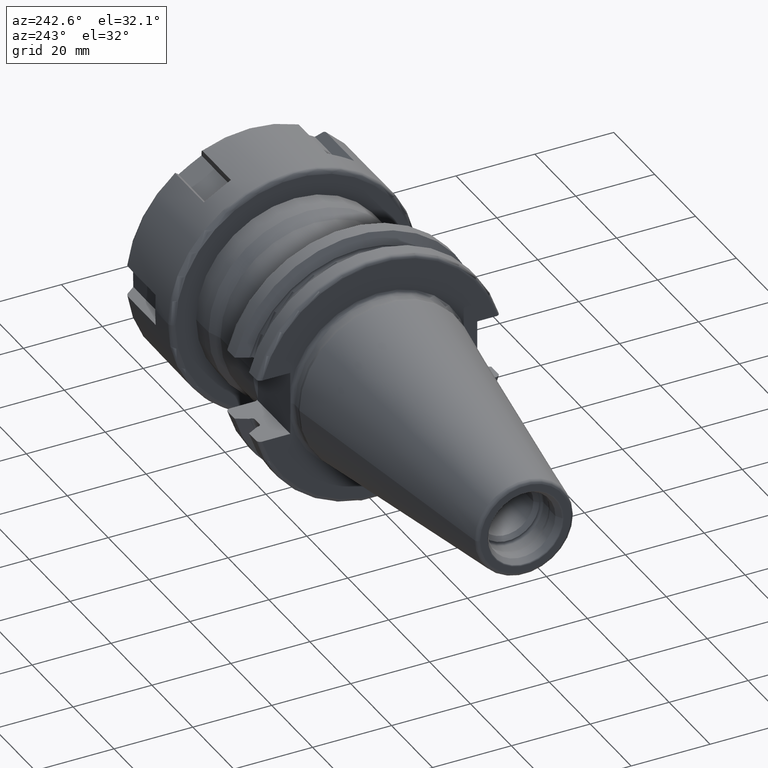
[diagram: clean part render]
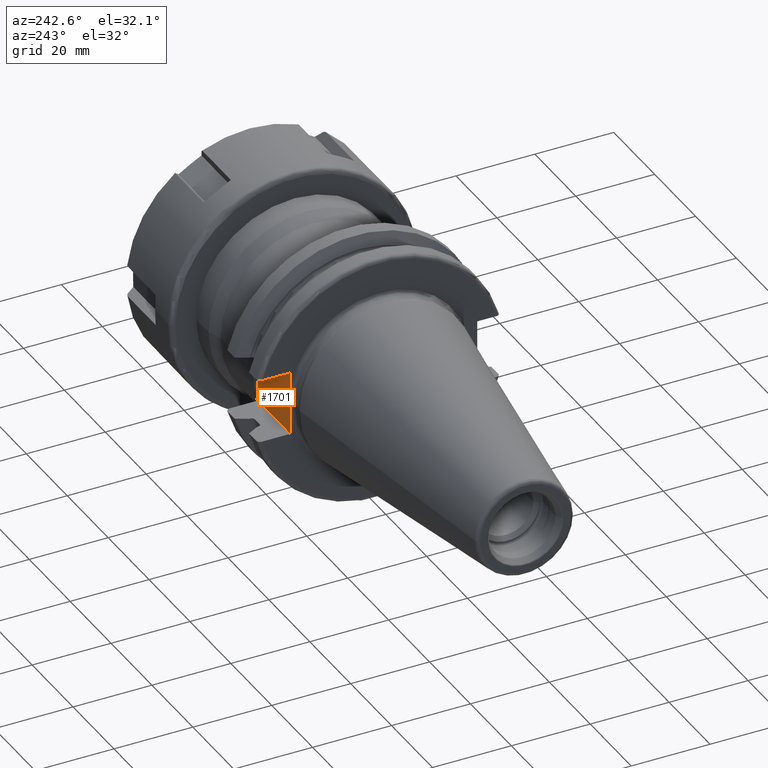
[diagram: same view with one face highlighted and labeled with its STEP entity id]
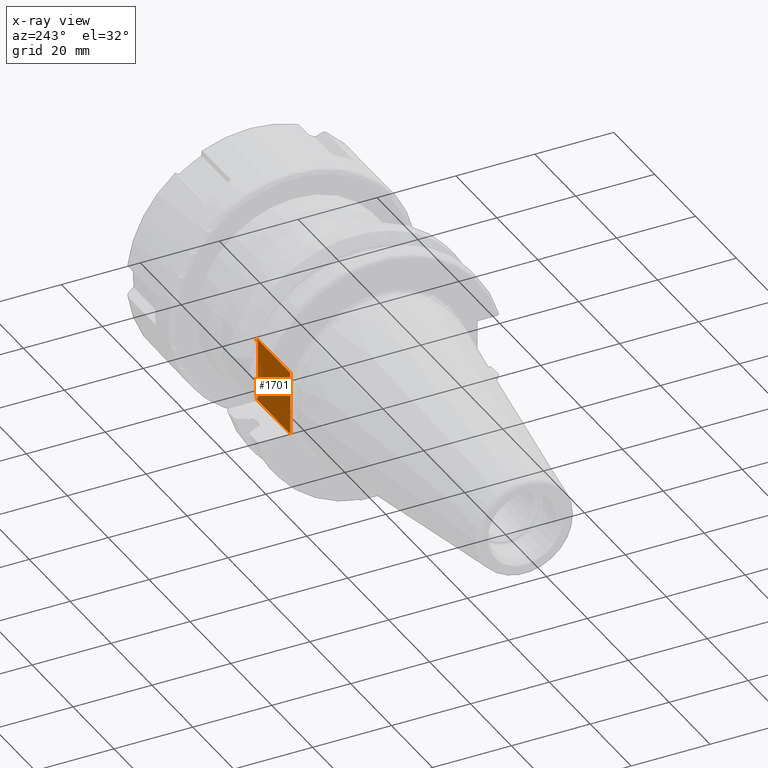
[diagram: x-ray of the same camera — body ghosted, the highlighted face saturated]
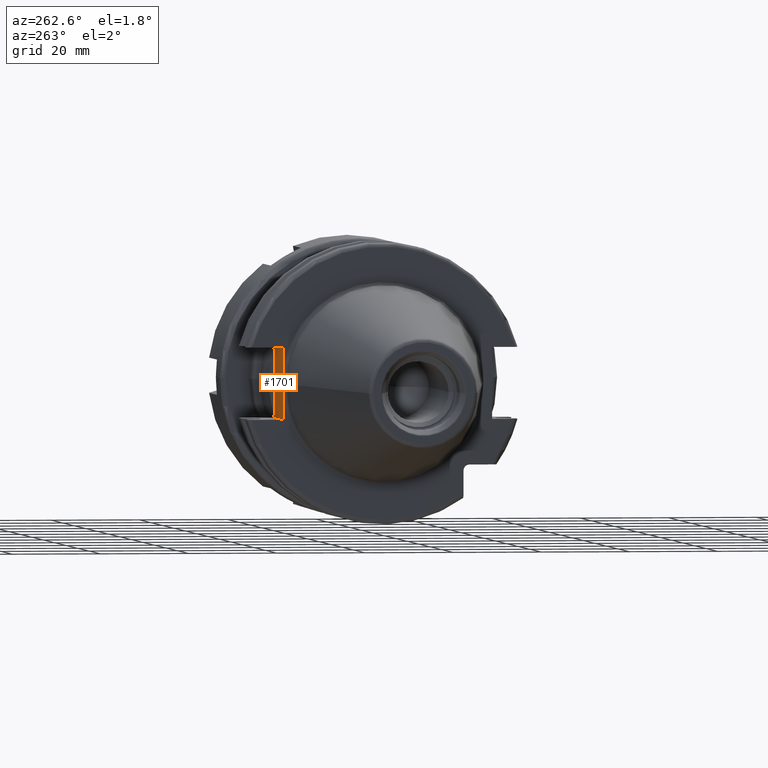
[diagram: same view with one face highlighted and labeled with its STEP entity id]
A machine part, auxiliary view. The second image highlights one B-rep face of the part: STEP entity #1701.
The next image is the same camera in x-ray: the body ghosted, the highlighted face saturated — about 4% of this face is hidden behind the body in this view.
A second angle (auxiliary view) of the same face is appended — the face is thin or edge-on in the first view.
In plain terms, the highlighted planar face has unit normal (0, -1, 0).
Its self-contained STEP definition (entity closure, byte-faithful):
#96=CARTESIAN_POINT('',(3.145714015969E0,2.255E1,0.E0));
#97=CARTESIAN_POINT('',(3.145714015969E0,2.255E1,-1.830251188857E-1));
#98=CARTESIAN_POINT('',(3.147263299438E0,2.255E1,-5.490774984715E-1));
#99=CARTESIAN_POINT('',(3.153915624300E0,2.255E1,-1.098219783342E0));
#100=CARTESIAN_POINT('',(3.163955531798E0,2.255E1,-1.647254187265E0));
#101=CARTESIAN_POINT('',(3.175890292850E0,2.255E1,-2.196155647006E0));
#102=CARTESIAN_POINT('',(3.187756155044E0,2.255E1,-2.744876756971E0));
#103=CARTESIAN_POINT('',(3.197183898560E0,2.255E1,-3.293518646440E0));
#104=CARTESIAN_POINT('',(3.2E0,2.255E1,-3.659354563864E0));
#105=CARTESIAN_POINT('',(3.2E0,2.255E1,-3.842281223440E0));
#122=DIRECTION('',(1.E0,0.E0,0.E0));
#123=VECTOR('',#122,1.623606320069E1);
#124=CARTESIAN_POINT('',(3.2E0,2.255E1,-8.1E0));
#125=LINE('',#124,#123);
#126=DIRECTION('',(0.E0,0.E0,-1.E0));
#127=VECTOR('',#126,1.490771612287E1);
#128=CARTESIAN_POINT('',(1.905E1,2.255E1,7.453858061434E0));
#129=LINE('',#128,#127);
#130=DIRECTION('',(-1.E0,0.E0,0.E0));
#131=VECTOR('',#130,1.623606320069E1);
#132=CARTESIAN_POINT('',(1.943606320069E1,2.255E1,8.1E0));
#133=LINE('',#132,#131);
#162=CARTESIAN_POINT('',(2.005E1,2.255E1,-7.453858061434E0));
#163=CARTESIAN_POINT('',(2.000936511799E1,2.255E1,-7.453858061434E0));
#164=CARTESIAN_POINT('',(1.992976315127E1,2.255E1,-7.469482832895E0));
#165=CARTESIAN_POINT('',(1.981396814209E1,2.255E1,-7.536286965290E0));
#166=CARTESIAN_POINT('',(1.970586770404E1,2.255E1,-7.639899395684E0));
#167=CARTESIAN_POINT('',(1.960833536573E1,2.255E1,-7.769522543170E0));
#168=CARTESIAN_POINT('',(1.951881462525E1,2.255E1,-7.921432053320E0));
#169=CARTESIAN_POINT('',(1.946301376301E1,2.255E1,-8.037994171646E0));
#170=CARTESIAN_POINT('',(1.943606320069E1,2.255E1,-8.1E0));
#193=CARTESIAN_POINT('',(1.943606320069E1,2.255E1,8.1E0));
#194=CARTESIAN_POINT('',(1.946305840827E1,2.255E1,8.037891455177E0));
#195=CARTESIAN_POINT('',(1.951892142596E1,2.255E1,7.921049304153E0));
#196=CARTESIAN_POINT('',(1.961060547916E1,2.255E1,7.765906197033E0));
#197=CARTESIAN_POINT('',(1.970740339789E1,2.255E1,7.638648713066E0));
#198=CARTESIAN_POINT('',(1.981036082603E1,2.255E1,7.539458555982E0));
#199=CARTESIAN_POINT('',(1.992628917834E1,2.255E1,7.470583481219E0));
#200=CARTESIAN_POINT('',(2.000780017492E1,2.255E1,7.453858061434E0));
#201=CARTESIAN_POINT('',(2.005E1,2.255E1,7.453858061434E0));
#208=DIRECTION('',(-1.E0,0.E0,-1.421085471520E-14));
#209=VECTOR('',#208,1.E0);
#210=CARTESIAN_POINT('',(2.005E1,2.255E1,7.453858061434E0));
#211=LINE('',#210,#209);
#245=DIRECTION('',(-1.E0,0.E0,0.E0));
#246=VECTOR('',#245,1.E0);
#247=CARTESIAN_POINT('',(2.005E1,2.255E1,-7.453858061434E0));
#248=LINE('',#247,#246);
#615=DIRECTION('',(0.E0,0.E0,-1.E0));
#616=VECTOR('',#615,4.257718776560E0);
#617=CARTESIAN_POINT('',(3.2E0,2.255E1,-3.842281223440E0));
#618=LINE('',#617,#616);
#619=DIRECTION('',(0.E0,0.E0,-1.E0));
#620=VECTOR('',#619,4.257718776560E0);
#621=CARTESIAN_POINT('',(3.2E0,2.255E1,8.1E0));
#622=LINE('',#621,#620);
#1041=CARTESIAN_POINT('',(3.2E0,2.255E1,3.842281223440E0));
#1042=CARTESIAN_POINT('',(3.2E0,2.255E1,3.659346360345E0));
#1043=CARTESIAN_POINT('',(3.197183660273E0,2.255E1,3.293495674472E0));
#1044=CARTESIAN_POINT('',(3.187755287998E0,2.255E1,2.744832710969E0));
#1045=CARTESIAN_POINT('',(3.175889115457E0,2.255E1,2.196103113875E0));
#1046=CARTESIAN_POINT('',(3.163954665645E0,2.255E1,1.647211248391E0));
#1047=CARTESIAN_POINT('',(3.153915287595E0,2.255E1,1.098195325368E0));
#1048=CARTESIAN_POINT('',(3.147263292433E0,2.255E1,5.490722257557E-1));
#1049=CARTESIAN_POINT('',(3.145714015969E0,2.255E1,1.830242653455E-1));
#1050=CARTESIAN_POINT('',(3.145714015969E0,2.255E1,0.E0));
#1418=CARTESIAN_POINT('',(3.2E0,2.255E1,8.1E0));
#1420=VERTEX_POINT('',#1418);
#1421=CARTESIAN_POINT('',(3.2E0,2.255E1,3.842281223440E0));
#1422=VERTEX_POINT('',#1421);
#1423=CARTESIAN_POINT('',(3.2E0,2.255E1,-3.842281223440E0));
#1424=CARTESIAN_POINT('',(3.2E0,2.255E1,-8.1E0));
#1425=VERTEX_POINT('',#1423);
#1426=VERTEX_POINT('',#1424);
#1445=VERTEX_POINT('',#1050);
#1487=CARTESIAN_POINT('',(2.005E1,2.255E1,-7.453858061434E0));
#1489=VERTEX_POINT('',#1487);
#1490=CARTESIAN_POINT('',(2.005E1,2.255E1,7.453858061434E0));
#1491=VERTEX_POINT('',#1490);
#1501=CARTESIAN_POINT('',(1.905E1,2.255E1,7.453858061434E0));
#1502=VERTEX_POINT('',#1501);
#1503=CARTESIAN_POINT('',(1.905E1,2.255E1,-7.453858061434E0));
#1504=VERTEX_POINT('',#1503);
#1505=VERTEX_POINT('',#193);
#1506=VERTEX_POINT('',#170);
#1673=CARTESIAN_POINT('',(1.905E1,2.255E1,8.1E0));
#1674=DIRECTION('',(0.E0,-1.E0,0.E0));
#1675=DIRECTION('',(0.E0,0.E0,-1.E0));
#1676=AXIS2_PLACEMENT_3D('',#1673,#1674,#1675);
#1677=PLANE('',#1676);
#1679=ORIENTED_EDGE('',*,*,#1678,.T.);
#1681=ORIENTED_EDGE('',*,*,#1680,.F.);
#1683=ORIENTED_EDGE('',*,*,#1682,.T.);
#1685=ORIENTED_EDGE('',*,*,#1684,.F.);
#1687=ORIENTED_EDGE('',*,*,#1686,.F.);
#1689=ORIENTED_EDGE('',*,*,#1688,.F.);
#1691=ORIENTED_EDGE('',*,*,#1690,.T.);
#1693=ORIENTED_EDGE('',*,*,#1692,.T.);
#1695=ORIENTED_EDGE('',*,*,#1694,.T.);
#1696=ORIENTED_EDGE('',*,*,#1661,.T.);
#1698=ORIENTED_EDGE('',*,*,#1697,.T.);
#1699=EDGE_LOOP('',(#1679,#1681,#1683,#1685,#1687,#1689,#1691,#1693,#1695,#1696,
#1698));
#1700=FACE_OUTER_BOUND('',#1699,.F.);
#1701=ADVANCED_FACE('',(#1700),#1677,.F.);
#106=B_SPLINE_CURVE_WITH_KNOTS('',3,(#96,#97,#98,#99,#100,#101,#102,#103,#104,
#105),.UNSPECIFIED.,.F.,.F.,(4,1,1,1,1,1,1,4),(0.E0,1.428571428571E-1,
2.857142857143E-1,4.285714285714E-1,5.714285714286E-1,7.142857142857E-1,
8.571428571429E-1,1.E0),.UNSPECIFIED.);
#171=B_SPLINE_CURVE_WITH_KNOTS('',3,(#162,#163,#164,#165,#166,#167,#168,#169,
#170),.UNSPECIFIED.,.F.,.F.,(4,1,1,1,1,1,4),(0.E0,1.666666666667E-1,
3.333333333333E-1,5.E-1,6.666666666667E-1,8.333333333333E-1,1.E0),
.UNSPECIFIED.);
#202=B_SPLINE_CURVE_WITH_KNOTS('',3,(#193,#194,#195,#196,#197,#198,#199,#200,
#201),.UNSPECIFIED.,.F.,.F.,(4,1,1,1,1,1,4),(0.E0,1.666666666667E-1,
3.333333333333E-1,5.E-1,6.666666666667E-1,8.333333333333E-1,1.E0),
.UNSPECIFIED.);
#1051=B_SPLINE_CURVE_WITH_KNOTS('',3,(#1041,#1042,#1043,#1044,#1045,#1046,#1047,
#1048,#1049,#1050),.UNSPECIFIED.,.F.,.F.,(4,1,1,1,1,1,1,4),(0.E0,
1.428571428571E-1,2.857142857143E-1,4.285714285714E-1,5.714285714286E-1,
7.142857142857E-1,8.571428571429E-1,1.E0),.UNSPECIFIED.);
#1661=EDGE_CURVE('',#1445,#1425,#106,.T.);
#1678=EDGE_CURVE('',#1426,#1506,#125,.T.);
#1680=EDGE_CURVE('',#1489,#1506,#171,.T.);
#1682=EDGE_CURVE('',#1489,#1504,#248,.T.);
#1684=EDGE_CURVE('',#1502,#1504,#129,.T.);
#1686=EDGE_CURVE('',#1491,#1502,#211,.T.);
#1688=EDGE_CURVE('',#1505,#1491,#202,.T.);
#1690=EDGE_CURVE('',#1505,#1420,#133,.T.);
#1692=EDGE_CURVE('',#1420,#1422,#622,.T.);
#1694=EDGE_CURVE('',#1422,#1445,#1051,.T.);
#1697=EDGE_CURVE('',#1425,#1426,#618,.T.);